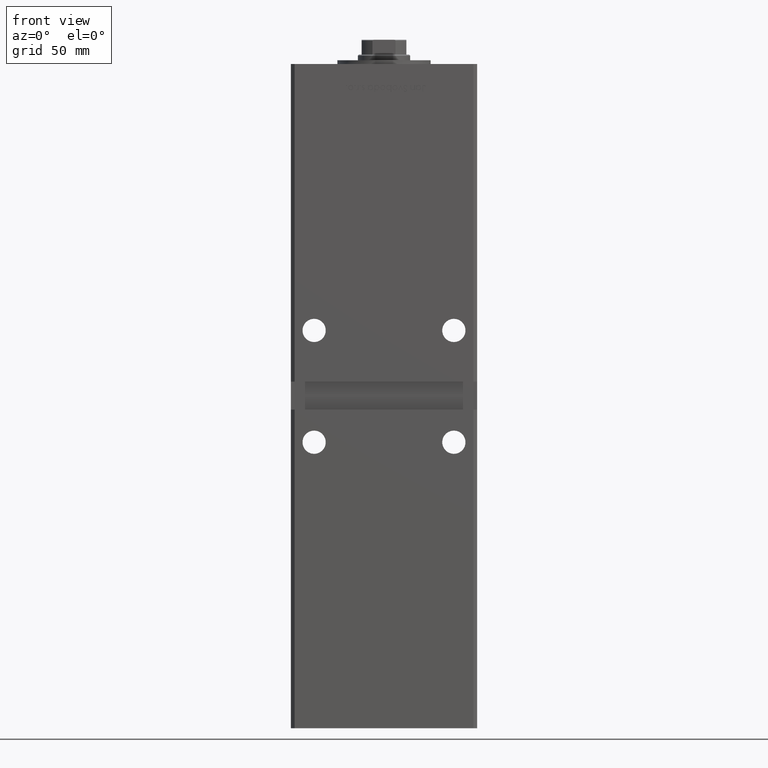
[diagram: clean part render]
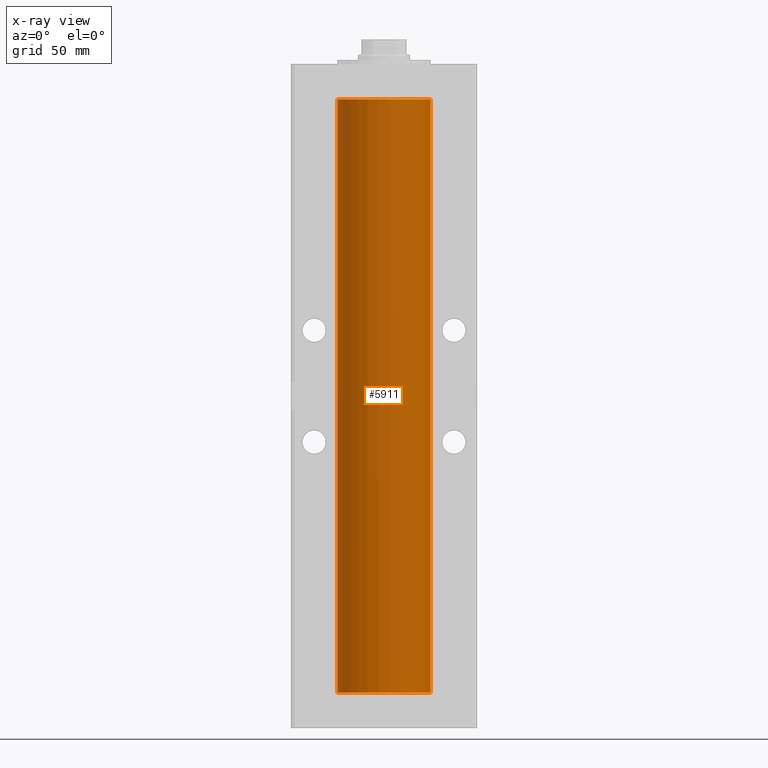
[diagram: x-ray — body ghosted, one internal face saturated and labeled with its STEP entity id]
A machine part, front view, then the same camera in x-ray: the body is ghosted and one INTERNAL B-rep face — a face not visible from any outside direction — is saturated and labeled: STEP entity #5911.
In plain terms, the highlighted cylindrical surface (partial cylindrical patch) has radius 25 mm, axis along (-0, -0, -1).
Its self-contained STEP definition (entity closure, byte-faithful):
#1078 = VERTEX_POINT ( 'NONE', #29927 ) ;
#1677 = CIRCLE ( 'NONE', #31719, 25.00000000000000000 ) ;
#1733 = CYLINDRICAL_SURFACE ( 'NONE', #17852, 25.00000000000000000 ) ;
#4392 = VECTOR ( 'NONE', #35984, 1000.000000000000000 ) ;
#5911 = ADVANCED_FACE ( 'NONE', ( #42046 ), #1733, .F. ) ;
#6632 = AXIS2_PLACEMENT_3D ( 'NONE', #32985, #12574, #26772 ) ;
#9018 = CARTESIAN_POINT ( 'NONE',  ( 0.000000000000000000, 0.000000000000000000, 318.5000000000000000 ) ) ;
#10489 = LINE ( 'NONE', #51033, #41386 ) ;
#11205 = ORIENTED_EDGE ( 'NONE', *, *, #46187, .F. ) ;
#12574 = DIRECTION ( 'NONE',  ( -0.000000000000000000, 0.000000000000000000, 1.000000000000000000 ) ) ;
#17852 = AXIS2_PLACEMENT_3D ( 'NONE', #9018, #17868, #37748 ) ;
#17868 = DIRECTION ( 'NONE',  ( -0.000000000000000000, -0.000000000000000000, -1.000000000000000000 ) ) ;
#21223 = CIRCLE ( 'NONE', #6632, 25.00000000000000000 ) ;
#21983 = DIRECTION ( 'NONE',  ( 1.000000000000000000, 0.000000000000000000, 0.000000000000000000 ) ) ;
#25042 = EDGE_LOOP ( 'NONE', ( #51524, #40205, #43412, #11205 ) ) ;
#26064 = EDGE_CURVE ( 'NONE', #30023, #1078, #21223, .T. ) ;
#26772 = DIRECTION ( 'NONE',  ( 1.000000000000000000, 0.000000000000000000, 0.000000000000000000 ) ) ;
#28431 = VERTEX_POINT ( 'NONE', #43646 ) ;
#28844 = CARTESIAN_POINT ( 'NONE',  ( 25.00000000000000000, 3.061616997868383043E-15, 0.000000000000000000 ) ) ;
#29927 = CARTESIAN_POINT ( 'NONE',  ( 25.00000000000000000, 3.061616997868383043E-15, 318.5000000000000000 ) ) ;
#30023 = VERTEX_POINT ( 'NONE', #36220 ) ;
#31719 = AXIS2_PLACEMENT_3D ( 'NONE', #34065, #42373, #21983 ) ;
#32985 = CARTESIAN_POINT ( 'NONE',  ( 0.000000000000000000, 0.000000000000000000, 318.5000000000000000 ) ) ;
#33174 = EDGE_CURVE ( 'NONE', #28431, #52093, #1677, .T. ) ;
#34065 = CARTESIAN_POINT ( 'NONE',  ( 0.000000000000000000, 0.000000000000000000, 0.000000000000000000 ) ) ;
#35699 = DIRECTION ( 'NONE',  ( -0.000000000000000000, -0.000000000000000000, -1.000000000000000000 ) ) ;
#35984 = DIRECTION ( 'NONE',  ( -0.000000000000000000, -0.000000000000000000, -1.000000000000000000 ) ) ;
#36220 = CARTESIAN_POINT ( 'NONE',  ( -25.00000000000000000, 0.000000000000000000, 318.5000000000000000 ) ) ;
#37748 = DIRECTION ( 'NONE',  ( -1.000000000000000000, 0.000000000000000000, 0.000000000000000000 ) ) ;
#37900 = EDGE_CURVE ( 'NONE', #1078, #52093, #48069, .T. ) ;
#39483 = CARTESIAN_POINT ( 'NONE',  ( 25.00000000000000000, 3.061616997868383043E-15, 318.5000000000000000 ) ) ;
#40205 = ORIENTED_EDGE ( 'NONE', *, *, #37900, .T. ) ;
#41386 = VECTOR ( 'NONE', #35699, 1000.000000000000000 ) ;
#42046 = FACE_OUTER_BOUND ( 'NONE', #25042, .T. ) ;
#42373 = DIRECTION ( 'NONE',  ( -0.000000000000000000, 0.000000000000000000, 1.000000000000000000 ) ) ;
#43412 = ORIENTED_EDGE ( 'NONE', *, *, #33174, .F. ) ;
#43646 = CARTESIAN_POINT ( 'NONE',  ( -25.00000000000000000, 0.000000000000000000, 0.000000000000000000 ) ) ;
#46187 = EDGE_CURVE ( 'NONE', #30023, #28431, #10489, .T. ) ;
#48069 = LINE ( 'NONE', #39483, #4392 ) ;
#51033 = CARTESIAN_POINT ( 'NONE',  ( -25.00000000000000000, 0.000000000000000000, 318.5000000000000000 ) ) ;
#51524 = ORIENTED_EDGE ( 'NONE', *, *, #26064, .T. ) ;
#52093 = VERTEX_POINT ( 'NONE', #28844 ) ;